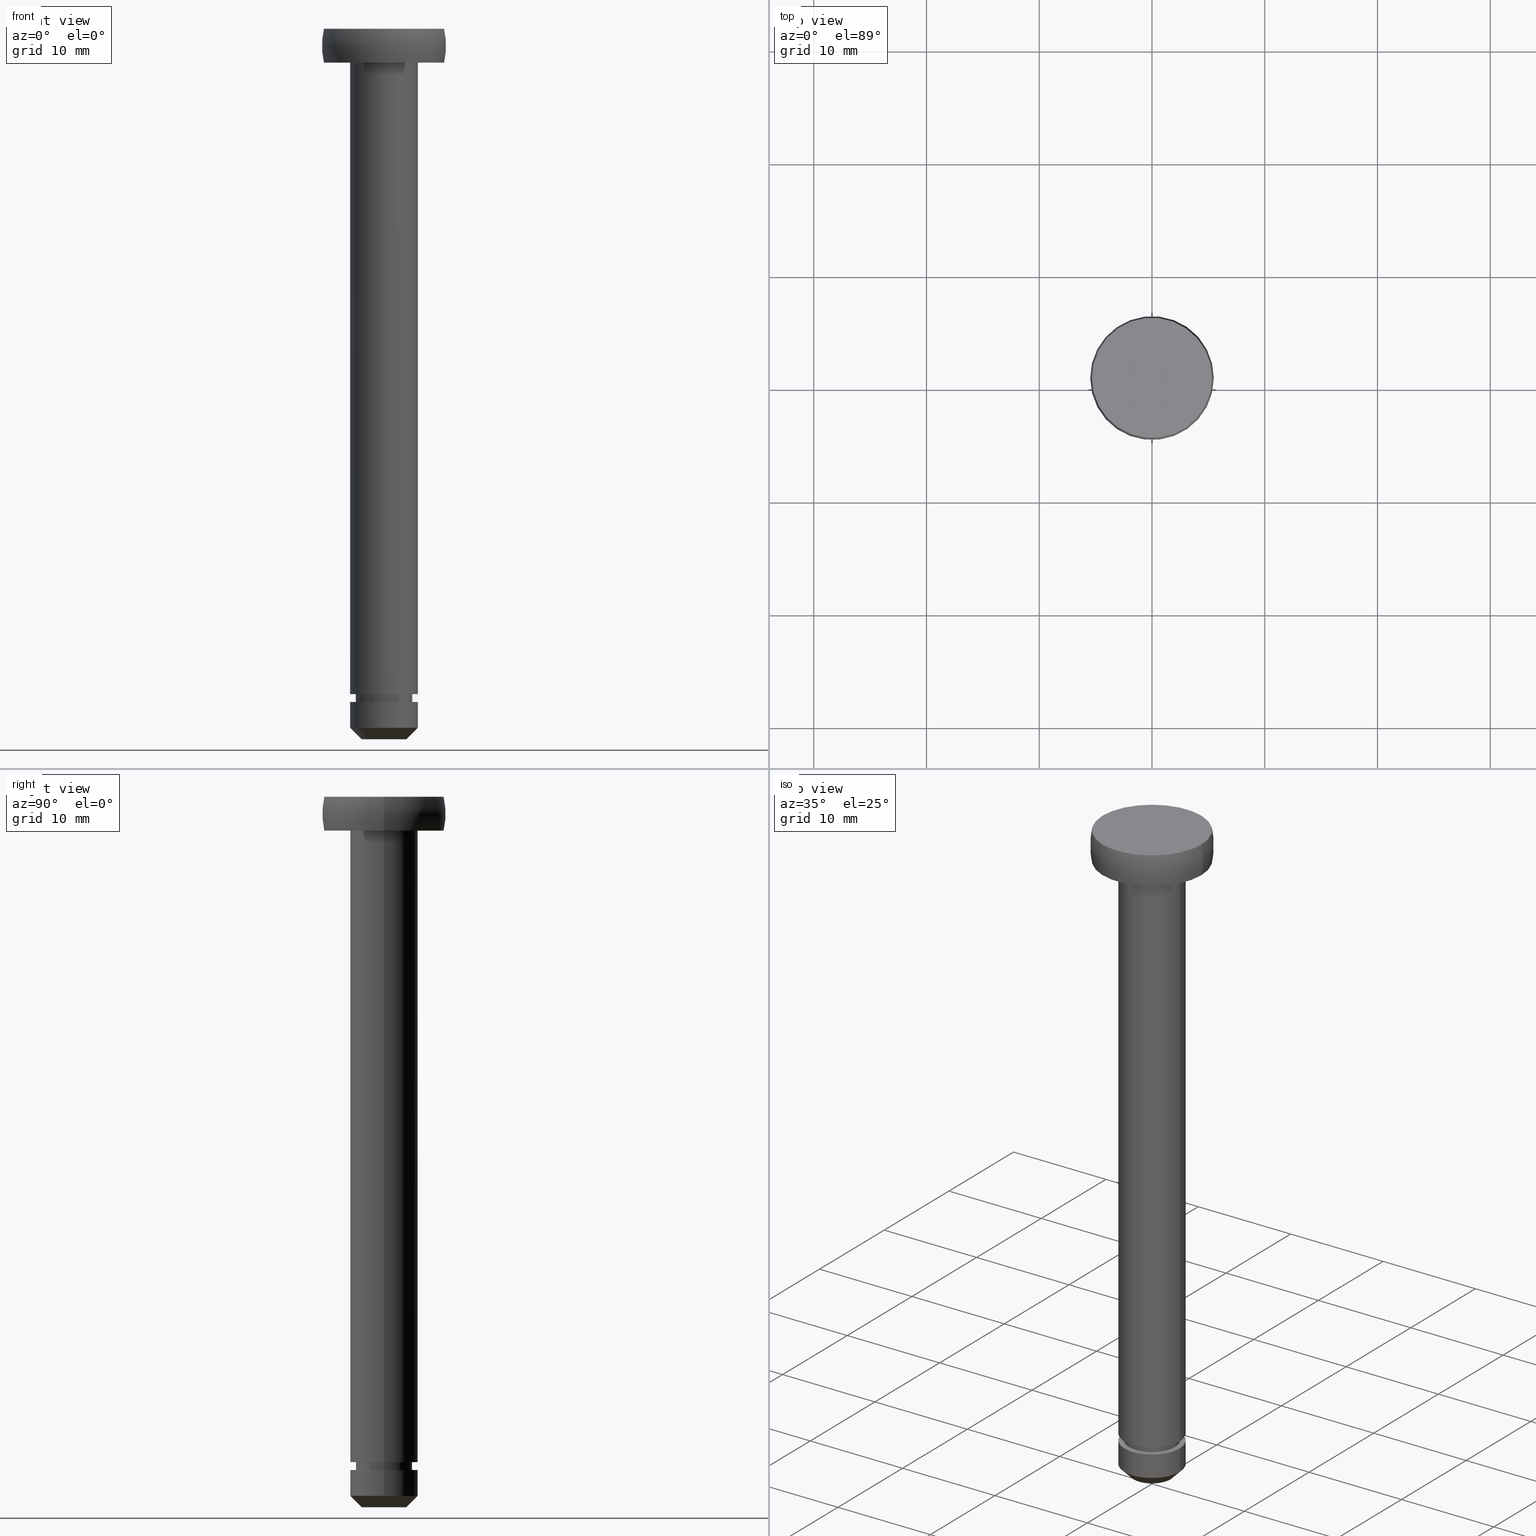
[diagram: canonical four-view strip — front | top / right | iso, engineering-drawing reading convention]
A machine part, canonical four-view strip (front | top / right | iso — engineering-drawing reading convention). The complete STEP part file that produces these views, byte-faithful:
ISO-10303-21;
HEADER;
FILE_DESCRIPTION (( 'STEP AP214' ),
    '1' );
FILE_NAME ('TH_121SUS_6_60.STEP',
    '2016-08-24T05:26:56',
    ( '' ),
    ( '' ),
    'SwSTEP 2.0',
    'SolidWorks 2015',
    '' );
FILE_SCHEMA (( 'AUTOMOTIVE_DESIGN' ));
ENDSEC;

DATA;
#1 = EDGE_LOOP ( 'NONE', ( #223, #256 ) ) ;
#2 = PRODUCT_CONTEXT ( 'NONE', #21, 'mechanical' ) ;
#3 = AXIS2_PLACEMENT_3D ( 'NONE', #32, #13, #445 ) ;
#4 = DIRECTION ( 'NONE',  ( -1.000000000000000000, 0.0000000000000000000, -0.0000000000000000000 ) ) ;
#5 = ORIENTED_EDGE ( 'NONE', *, *, #400, .T. ) ;
#6 = CARTESIAN_POINT ( 'NONE',  ( -3.000000000000000000, 0.0000000000000000000, -6.132507950209293800E-014 ) ) ;
#7 = CYLINDRICAL_SURFACE ( 'NONE', #336, 2.999999999999998200 ) ;
#8 = APPLICATION_PROTOCOL_DEFINITION ( 'draft international standard', 'automotive_design', 1998, #21 ) ;
#9 = EDGE_LOOP ( 'NONE', ( #444, #314, #383, #92 ) ) ;
#10 = LINE ( 'NONE', #249, #425 ) ;
#11 = CARTESIAN_POINT ( 'NONE',  ( 0.0000000000000000000, 0.0000000000000000000, -6.132507696099412100E-014 ) ) ;
#12 = CONICAL_SURFACE ( 'NONE', #253, 2.000000000000000000, 0.7853981633974944600 ) ;
#13 = DIRECTION ( 'NONE',  ( 0.0000000000000000000, 0.0000000000000000000, -1.000000000000000000 ) ) ;
#14 = DIRECTION ( 'NONE',  ( 0.0000000000000000000, 0.0000000000000000000, -1.000000000000000000 ) ) ;
#15 = CARTESIAN_POINT ( 'NONE',  ( -2.500000000000000000, 0.0000000000000000000, -6.132507950209293800E-014 ) ) ;
#16 = SURFACE_STYLE_FILL_AREA ( #360 ) ;
#17 = DIRECTION ( 'NONE',  ( 0.0000000000000000000, 0.0000000000000000000, -1.000000000000000000 ) ) ;
#18 = MECHANICAL_DESIGN_GEOMETRIC_PRESENTATION_REPRESENTATION (  '', ( #436 ), #33 ) ;
#19 = FACE_OUTER_BOUND ( 'NONE', #199, .T. ) ;
#20 = DIRECTION ( 'NONE',  ( -1.000000000000000000, 0.0000000000000000000, 0.0000000000000000000 ) ) ;
#21 = APPLICATION_CONTEXT ( 'automotive_design' ) ;
#22 = ORIENTED_EDGE ( 'NONE', *, *, #240, .T. ) ;
#23 = MANIFOLD_SOLID_BREP ( '��]1', #119 ) ;
#24 = ORIENTED_EDGE ( 'NONE', *, *, #441, .F. ) ;
#25 = EDGE_CURVE ( 'NONE', #457, #91, #353, .T. ) ;
#26 = ORIENTED_EDGE ( 'NONE', *, *, #366, .F. ) ;
#27 = AXIS2_PLACEMENT_3D ( 'NONE', #404, #374, #117 ) ;
#28 = ORIENTED_EDGE ( 'NONE', *, *, #419, .T. ) ;
#29 = APPLICATION_CONTEXT ( 'automotive_design' ) ;
#30 = PRODUCT ( 'TH_121SUS_6_60', 'TH_121SUS_6_60', '', ( #132 ) ) ;
#31 = ADVANCED_FACE ( 'NONE', ( #459 ), #149, .T. ) ;
#32 = CARTESIAN_POINT ( 'NONE',  ( 0.0000000000000000000, 0.0000000000000000000, -3.000000018043550200 ) ) ;
#33 =( GEOMETRIC_REPRESENTATION_CONTEXT ( 3 ) GLOBAL_UNCERTAINTY_ASSIGNED_CONTEXT ( ( #413 ) ) GLOBAL_UNIT_ASSIGNED_CONTEXT ( ( #405, #152, #169 ) ) REPRESENTATION_CONTEXT ( 'NONE', 'WORKASPACE' ) );
#34 = DIRECTION ( 'NONE',  ( 0.0000000000000000000, 0.0000000000000000000, -1.000000000000000000 ) ) ;
#35 = DIRECTION ( 'NONE',  ( 0.0000000000000000000, 0.0000000000000000000, -1.000000000000000000 ) ) ;
#36 = FACE_OUTER_BOUND ( 'NONE', #390, .T. ) ;
#37 = DIRECTION ( 'NONE',  ( -1.000000000000000000, 0.0000000000000000000, 0.0000000000000000000 ) ) ;
#38 = ORIENTED_EDGE ( 'NONE', *, *, #387, .F. ) ;
#39 = ORIENTED_EDGE ( 'NONE', *, *, #122, .F. ) ;
#40 = DIRECTION ( 'NONE',  ( -1.000000000000000000, 0.0000000000000000000, 0.0000000000000000000 ) ) ;
#41 = DIRECTION ( 'NONE',  ( 0.0000000000000000000, 0.0000000000000000000, 1.000000000000000000 ) ) ;
#42 = ORIENTED_EDGE ( 'NONE', *, *, #287, .T. ) ;
#43 = ORIENTED_EDGE ( 'NONE', *, *, #190, .F. ) ;
#44 = DIRECTION ( 'NONE',  ( -1.000000000000000000, 0.0000000000000000000, 0.0000000000000000000 ) ) ;
#45 = DIRECTION ( 'NONE',  ( -1.000000000000000000, 0.0000000000000000000, 0.0000000000000000000 ) ) ;
#46 = AXIS2_PLACEMENT_3D ( 'NONE', #407, #330, #345 ) ;
#47 = DIRECTION ( 'NONE',  ( -1.000000000000000000, 0.0000000000000000000, 0.0000000000000000000 ) ) ;
#48 = ORIENTED_EDGE ( 'NONE', *, *, #462, .T. ) ;
#49 = DIRECTION ( 'NONE',  ( -1.000000000000000000, 0.0000000000000000000, 0.0000000000000000000 ) ) ;
#50 = ORIENTED_EDGE ( 'NONE', *, *, #441, .T. ) ;
#51 = CARTESIAN_POINT ( 'NONE',  ( 0.0000000000000000000, 0.0000000000000000000, -59.00000001804349400 ) ) ;
#52 = LINE ( 'NONE', #381, #382 ) ;
#53 = DIRECTION ( 'NONE',  ( 0.0000000000000000000, 0.0000000000000000000, -1.000000000000000000 ) ) ;
#54 = EDGE_CURVE ( 'NONE', #158, #367, #110, .T. ) ;
#55 = FACE_OUTER_BOUND ( 'NONE', #225, .T. ) ;
#56 = ORIENTED_EDGE ( 'NONE', *, *, #387, .T. ) ;
#57 = SHAPE_REPRESENTATION ( 'TH_121SUS_6_60', ( #175, #128 ), #156 ) ;
#58 = VECTOR ( 'NONE', #102, 1000.000000000000000 ) ;
#59 = AXIS2_PLACEMENT_3D ( 'NONE', #11, #409, #290 ) ;
#60 = ORIENTED_EDGE ( 'NONE', *, *, #185, .F. ) ;
#61 = CIRCLE ( 'NONE', #46, 2.500000000000000000 ) ;
#62 = SHAPE_REPRESENTATION ( 'shaft', ( #114 ), #94 ) ;
#63 = CONTEXT_DEPENDENT_SHAPE_REPRESENTATION ( #218, #280 ) ;
#64 = AXIS2_PLACEMENT_3D ( 'NONE', #250, #296, #244 ) ;
#65 = VERTEX_POINT ( 'NONE', #373 ) ;
#66 = CARTESIAN_POINT ( 'NONE',  ( 0.0000000000000000000, 0.0000000000000000000, -59.70000001804350400 ) ) ;
#67 = APPLICATION_PROTOCOL_DEFINITION ( 'draft international standard', 'automotive_design', 1998, #29 ) ;
#68 = UNCERTAINTY_MEASURE_WITH_UNIT (LENGTH_MEASURE( 1.000000000000000100E-005 ), #74, 'distance_accuracy_value', 'NONE');
#69 = DIRECTION ( 'NONE',  ( -1.000000000000000000, -1.224646799147353200E-016, 0.0000000000000000000 ) ) ;
#70 = FACE_OUTER_BOUND ( 'NONE', #71, .T. ) ;
#71 = EDGE_LOOP ( 'NONE', ( #442, #293, #48, #356 ) ) ;
#72 = CARTESIAN_POINT ( 'NONE',  ( -2.500000000000000000, 0.0000000000000000000, -59.00000001804349400 ) ) ;
#73 = COLOUR_RGB ( '',0.7921568627450980000, 0.8196078431372548800, 0.9333333333333333500 ) ;
#74 =( LENGTH_UNIT ( ) NAMED_UNIT ( * ) SI_UNIT ( .MILLI., .METRE. ) );
#75 = VECTOR ( 'NONE', #229, 1000.000000000000000 ) ;
#76 = CIRCLE ( 'NONE', #355, 3.000000000000000000 ) ;
#77 = AXIS2_PLACEMENT_3D ( 'NONE', #410, #270, #238 ) ;
#78 = SHAPE_DEFINITION_REPRESENTATION ( #317, #57 ) ;
#79 = CARTESIAN_POINT ( 'NONE',  ( -1.142766791230102100, -1.399485693051835900E-016, -1.500000009021820000 ) ) ;
#80 = ORIENTED_EDGE ( 'NONE', *, *, #25, .F. ) ;
#81 = CIRCLE ( 'NONE', #426, 6.642766791230087600 ) ;
#82 = DIRECTION ( 'NONE',  ( -1.000000000000000000, 0.0000000000000000000, 0.0000000000000000000 ) ) ;
#83 = ORIENTED_EDGE ( 'NONE', *, *, #54, .T. ) ;
#84 = EDGE_CURVE ( 'NONE', #401, #171, #203, .T. ) ;
#85 = CYLINDRICAL_SURFACE ( 'NONE', #27, 3.000000000000000000 ) ;
#86 = CARTESIAN_POINT ( 'NONE',  ( -2.500000000000000000, 0.0000000000000000000, -59.70000001804350400 ) ) ;
#87 = VERTEX_POINT ( 'NONE', #326 ) ;
#88 = PLANE ( 'NONE',  #226 ) ;
#89 = AXIS2_PLACEMENT_3D ( 'NONE', #228, #189, #20 ) ;
#90 = CARTESIAN_POINT ( 'NONE',  ( 0.0000000000000000000, 0.0000000000000000000, -1.500000009021820000 ) ) ;
#91 = VERTEX_POINT ( 'NONE', #437 ) ;
#92 = ORIENTED_EDGE ( 'NONE', *, *, #211, .F. ) ;
#93 = EDGE_CURVE ( 'NONE', #145, #457, #184, .T. ) ;
#94 =( GEOMETRIC_REPRESENTATION_CONTEXT ( 3 ) GLOBAL_UNCERTAINTY_ASSIGNED_CONTEXT ( ( #68 ) ) GLOBAL_UNIT_ASSIGNED_CONTEXT ( ( #74, #170, #176 ) ) REPRESENTATION_CONTEXT ( 'NONE', 'WORKASPACE' ) );
#95 = EDGE_CURVE ( 'NONE', #196, #166, #126, .T. ) ;
#96 = EDGE_LOOP ( 'NONE', ( #83, #5 ) ) ;
#97 = ORIENTED_EDGE ( 'NONE', *, *, #304, .T. ) ;
#98 = AXIS2_PLACEMENT_3D ( 'NONE', #252, #168, #370 ) ;
#99 = ORIENTED_EDGE ( 'NONE', *, *, #217, .T. ) ;
#100 = DIRECTION ( 'NONE',  ( 1.000000000000000000, 0.0000000000000000000, 0.0000000000000000000 ) ) ;
#101 = ORIENTED_EDGE ( 'NONE', *, *, #462, .F. ) ;
#102 = DIRECTION ( 'NONE',  ( 0.0000000000000000000, 0.0000000000000000000, -1.000000000000000000 ) ) ;
#103 = CIRCLE ( 'NONE', #323, 2.500000000000000000 ) ;
#104 = DIRECTION ( 'NONE',  ( -1.000000000000000000, 0.0000000000000000000, 0.0000000000000000000 ) ) ;
#105 = AXIS2_PLACEMENT_3D ( 'NONE', #286, #143, #45 ) ;
#106 = DIRECTION ( 'NONE',  ( 1.000000000000000000, 0.0000000000000000000, 0.0000000000000000000 ) ) ;
#107 = ORIENTED_EDGE ( 'NONE', *, *, #190, .T. ) ;
#108 = DIRECTION ( 'NONE',  ( 0.7071067811865802100, 0.0000000000000000000, 0.7071067811865149300 ) ) ;
#109 = CARTESIAN_POINT ( 'NONE',  ( 0.0000000000000000000, 0.0000000000000000000, 0.0000000000000000000 ) ) ;
#110 = CIRCLE ( 'NONE', #89, 2.000000000000000000 ) ;
#111 = CARTESIAN_POINT ( 'NONE',  ( 0.0000000000000000000, 0.0000000000000000000, -63.00000001804340100 ) ) ;
#112 = EDGE_LOOP ( 'NONE', ( #306, #206 ) ) ;
#113 = DIRECTION ( 'NONE',  ( 0.0000000000000000000, 0.0000000000000000000, -1.000000000000000000 ) ) ;
#114 = AXIS2_PLACEMENT_3D ( 'NONE', #144, #338, #100 ) ;
#115 = CARTESIAN_POINT ( 'NONE',  ( 1.142766791230102100, 0.0000000000000000000, -1.500000009021820000 ) ) ;
#116 = CIRCLE ( 'NONE', #202, 3.000000000000000000 ) ;
#117 = DIRECTION ( 'NONE',  ( -1.000000000000000000, 0.0000000000000000000, 0.0000000000000000000 ) ) ;
#118 = AXIS2_PLACEMENT_3D ( 'NONE', #231, #136, #47 ) ;
#119 = CLOSED_SHELL ( 'NONE', ( #344, #234, #135, #272, #283, #121, #186, #397, #153, #31, #276, #127, #325, #261, #456 ) ) ;
#120 = EDGE_CURVE ( 'NONE', #162, #208, #320, .T. ) ;
#121 = ADVANCED_FACE ( 'NONE', ( #36 ), #376, .T. ) ;
#122 = EDGE_CURVE ( 'NONE', #65, #91, #116, .T. ) ;
#123 = CIRCLE ( 'NONE', #369, 2.000000000000000000 ) ;
#124 = EDGE_LOOP ( 'NONE', ( #56, #432 ) ) ;
#125 = AXIS2_PLACEMENT_3D ( 'NONE', #375, #268, #341 ) ;
#126 = CIRCLE ( 'NONE', #151, 2.500000000000000000 ) ;
#127 = ADVANCED_FACE ( 'NONE', ( #70 ), #468, .T. ) ;
#128 = AXIS2_PLACEMENT_3D ( 'NONE', #147, #41, #429 ) ;
#129 = STYLED_ITEM ( 'NONE', ( #458 ), #182 ) ;
#130 = CARTESIAN_POINT ( 'NONE',  ( 0.0000000000000000000, 0.0000000000000000000, -62.00000001804349400 ) ) ;
#131 = CIRCLE ( 'NONE', #77, 5.328427118366800400 ) ;
#132 = PRODUCT_CONTEXT ( 'NONE', #163, 'mechanical' ) ;
#133 = CARTESIAN_POINT ( 'NONE',  ( 0.0000000000000000000, 0.0000000000000000000, -6.132507950209293800E-014 ) ) ;
#134 = PLANE ( 'NONE',  #393 ) ;
#135 = ADVANCED_FACE ( 'NONE', ( #236 ), #7, .T. ) ;
#136 = DIRECTION ( 'NONE',  ( 0.0000000000000000000, 0.0000000000000000000, -1.000000000000000000 ) ) ;
#137 = AXIS2_PLACEMENT_3D ( 'NONE', #307, #467, #439 ) ;
#138 = SURFACE_STYLE_USAGE ( .BOTH. , #403 ) ;
#139 = DIRECTION ( 'NONE',  ( 1.000000000000000000, 0.0000000000000000000, 0.0000000000000000000 ) ) ;
#140 = CARTESIAN_POINT ( 'NONE',  ( -5.328427118366799500, 0.0000000000000000000, -6.132507696099412100E-014 ) ) ;
#141 = CARTESIAN_POINT ( 'NONE',  ( 0.0000000000000000000, 0.0000000000000000000, -59.70000001804350400 ) ) ;
#142 = PLANE ( 'NONE',  #98 ) ;
#143 = DIRECTION ( 'NONE',  ( 0.0000000000000000000, 0.0000000000000000000, -1.000000000000000000 ) ) ;
#144 = CARTESIAN_POINT ( 'NONE',  ( 0.0000000000000000000, 0.0000000000000000000, 0.0000000000000000000 ) ) ;
#145 = VERTEX_POINT ( 'NONE', #402 ) ;
#146 = ORIENTED_EDGE ( 'NONE', *, *, #347, .T. ) ;
#147 = CARTESIAN_POINT ( 'NONE',  ( 0.0000000000000000000, 0.0000000000000000000, 0.0000000000000000000 ) ) ;
#148 =( NAMED_UNIT ( * ) PLANE_ANGLE_UNIT ( ) SI_UNIT ( $, .RADIAN. ) );
#149 = CYLINDRICAL_SURFACE ( 'NONE', #105, 2.999999999999998200 ) ;
#150 = DIRECTION ( 'NONE',  ( 0.0000000000000000000, -0.0000000000000000000, 1.000000000000000000 ) ) ;
#151 = AXIS2_PLACEMENT_3D ( 'NONE', #431, #267, #284 ) ;
#152 =( NAMED_UNIT ( * ) PLANE_ANGLE_UNIT ( ) SI_UNIT ( $, .RADIAN. ) );
#153 = ADVANCED_FACE ( 'NONE', ( #427 ), #12, .T. ) ;
#154 = VECTOR ( 'NONE', #165, 1000.000000000000000 ) ;
#155 = ORIENTED_EDGE ( 'NONE', *, *, #359, .F. ) ;
#156 =( GEOMETRIC_REPRESENTATION_CONTEXT ( 3 ) GLOBAL_UNCERTAINTY_ASSIGNED_CONTEXT ( ( #213 ) ) GLOBAL_UNIT_ASSIGNED_CONTEXT ( ( #265, #433, #342 ) ) REPRESENTATION_CONTEXT ( 'NONE', 'WORKASPACE' ) );
#157 = CARTESIAN_POINT ( 'NONE',  ( 0.0000000000000000000, 0.0000000000000000000, -63.00000001804340100 ) ) ;
#158 = VERTEX_POINT ( 'NONE', #371 ) ;
#159 = SURFACE_STYLE_FILL_AREA ( #412 ) ;
#160 = ORIENTED_EDGE ( 'NONE', *, *, #211, .T. ) ;
#161 = PRESENTATION_LAYER_ASSIGNMENT (  '', '', ( #129 ) ) ;
#162 = VERTEX_POINT ( 'NONE', #450 ) ;
#163 = APPLICATION_CONTEXT ( 'automotive_design' ) ;
#164 = ORIENTED_EDGE ( 'NONE', *, *, #25, .T. ) ;
#165 = DIRECTION ( 'NONE',  ( 0.0000000000000000000, 0.0000000000000000000, -1.000000000000000000 ) ) ;
#166 = VERTEX_POINT ( 'NONE', #72 ) ;
#167 = DIRECTION ( 'NONE',  ( 0.0000000000000000000, 0.0000000000000000000, -1.000000000000000000 ) ) ;
#168 = DIRECTION ( 'NONE',  ( 0.0000000000000000000, -0.0000000000000000000, 1.000000000000000000 ) ) ;
#169 =( NAMED_UNIT ( * ) SI_UNIT ( $, .STERADIAN. ) SOLID_ANGLE_UNIT ( ) );
#170 =( NAMED_UNIT ( * ) PLANE_ANGLE_UNIT ( ) SI_UNIT ( $, .RADIAN. ) );
#171 = VERTEX_POINT ( 'NONE', #288 ) ;
#172 = VERTEX_POINT ( 'NONE', #329 ) ;
#173 = AXIS2_PLACEMENT_3D ( 'NONE', #130, #399, #466 ) ;
#174 = DIRECTION ( 'NONE',  ( 1.000000000000000000, 0.0000000000000000000, 0.0000000000000000000 ) ) ;
#175 = AXIS2_PLACEMENT_3D ( 'NONE', #446, #430, #106 ) ;
#176 =( NAMED_UNIT ( * ) SI_UNIT ( $, .STERADIAN. ) SOLID_ANGLE_UNIT ( ) );
#177 = CIRCLE ( 'NONE', #242, 5.328427118366799500 ) ;
#178 = LINE ( 'NONE', #334, #392 ) ;
#179 = CARTESIAN_POINT ( 'NONE',  ( 2.500000000000000000, 3.061616997868383100E-016, -6.132507950209293800E-014 ) ) ;
#180 = MECHANICAL_DESIGN_GEOMETRIC_PRESENTATION_REPRESENTATION (  '', ( #129 ), #209 ) ;
#181 = DIRECTION ( 'NONE',  ( 0.0000000000000000000, 0.0000000000000000000, -1.000000000000000000 ) ) ;
#182 = ADVANCED_BREP_SHAPE_REPRESENTATION ( '', ( #23, #114 ), #94 ) ;
#183 = DIRECTION ( 'NONE',  ( -1.000000000000000000, 0.0000000000000000000, 0.0000000000000000000 ) ) ;
#184 = CIRCLE ( 'NONE', #125, 3.000000000000000000 ) ;
#185 = EDGE_CURVE ( 'NONE', #367, #162, #52, .T. ) ;
#186 = ADVANCED_FACE ( 'NONE', ( #386 ), #260, .T. ) ;
#187 = ORIENTED_EDGE ( 'NONE', *, *, #120, .F. ) ;
#188 = CARTESIAN_POINT ( 'NONE',  ( 2.500000000000000000, 0.0000000000000000000, -59.00000001804349400 ) ) ;
#189 = DIRECTION ( 'NONE',  ( 0.0000000000000000000, 0.0000000000000000000, -1.000000000000000000 ) ) ;
#190 = EDGE_CURVE ( 'NONE', #273, #208, #178, .T. ) ;
#191 = CARTESIAN_POINT ( 'NONE',  ( -3.000000000000000000, 0.0000000000000000000, -59.70000001804350400 ) ) ;
#192 = ORIENTED_EDGE ( 'NONE', *, *, #463, .T. ) ;
#193 = AXIS2_PLACEMENT_3D ( 'NONE', #408, #53, #315 ) ;
#194 = CIRCLE ( 'NONE', #297, 6.642766791230086700 ) ;
#195 = ORIENTED_EDGE ( 'NONE', *, *, #84, .F. ) ;
#196 = VERTEX_POINT ( 'NONE', #421 ) ;
#197 = PRODUCT_DEFINITION_SHAPE ( 'NONE', 'NONE',  #204 ) ;
#198 = PRODUCT_DEFINITION_CONTEXT ( 'detailed design', #396, 'design' ) ;
#199 = EDGE_LOOP ( 'NONE', ( #42, #224 ) ) ;
#200 = CIRCLE ( 'NONE', #464, 3.000000000000000000 ) ;
#201 = EDGE_LOOP ( 'NONE', ( #28, #107, #187, #24 ) ) ;
#202 = AXIS2_PLACEMENT_3D ( 'NONE', #51, #113, #104 ) ;
#203 = CIRCLE ( 'NONE', #59, 5.328427118366799500 ) ;
#204 = PRODUCT_DEFINITION ( 'UNKNOWN', '', #339, #198 ) ;
#205 = LINE ( 'NONE', #255, #75 ) ;
#206 = ORIENTED_EDGE ( 'NONE', *, *, #240, .F. ) ;
#207 = FACE_OUTER_BOUND ( 'NONE', #96, .T. ) ;
#208 = VERTEX_POINT ( 'NONE', #349 ) ;
#209 =( GEOMETRIC_REPRESENTATION_CONTEXT ( 3 ) GLOBAL_UNCERTAINTY_ASSIGNED_CONTEXT ( ( #328 ) ) GLOBAL_UNIT_ASSIGNED_CONTEXT ( ( #324, #148, #247 ) ) REPRESENTATION_CONTEXT ( 'NONE', 'WORKASPACE' ) );
#210 = CIRCLE ( 'NONE', #137, 2.999999999999996000 ) ;
#211 = EDGE_CURVE ( 'NONE', #158, #208, #10, .T. ) ;
#212 = CARTESIAN_POINT ( 'NONE',  ( 0.0000000000000000000, 0.0000000000000000000, -59.70000001804350400 ) ) ;
#213 = UNCERTAINTY_MEASURE_WITH_UNIT (LENGTH_MEASURE( 1.000000000000000100E-005 ), #265, 'distance_accuracy_value', 'NONE');
#214 = DIRECTION ( 'NONE',  ( -1.000000000000000000, 0.0000000000000000000, 0.0000000000000000000 ) ) ;
#215 = DIRECTION ( 'NONE',  ( 0.0000000000000000000, 0.0000000000000000000, -1.000000000000000000 ) ) ;
#216 = VERTEX_POINT ( 'NONE', #191 ) ;
#217 = EDGE_CURVE ( 'NONE', #91, #65, #76, .T. ) ;
#218 =( REPRESENTATION_RELATIONSHIP ('NONE','NONE', #57, #62 ) REPRESENTATION_RELATIONSHIP_WITH_TRANSFORMATION ( #357 )SHAPE_REPRESENTATION_RELATIONSHIP( ) );
#219 = SHAPE_REPRESENTATION_RELATIONSHIP ( 'NONE' , 'NONE' ,  #62, #182 ) ;
#220 = ORIENTED_EDGE ( 'NONE', *, *, #217, .F. ) ;
#221 = CARTESIAN_POINT ( 'NONE',  ( 2.500000000000000000, 3.061616997868383100E-016, -59.70000001804350400 ) ) ;
#222 = DIRECTION ( 'NONE',  ( 1.000000000000000000, 0.0000000000000000000, 0.0000000000000000000 ) ) ;
#223 = ORIENTED_EDGE ( 'NONE', *, *, #463, .F. ) ;
#224 = ORIENTED_EDGE ( 'NONE', *, *, #264, .T. ) ;
#225 = EDGE_LOOP ( 'NONE', ( #398, #302, #424, #26 ) ) ;
#226 = AXIS2_PLACEMENT_3D ( 'NONE', #188, #448, #4 ) ;
#227 = APPLICATION_PROTOCOL_DEFINITION ( 'draft international standard', 'automotive_design', 1998, #163 ) ;
#228 = CARTESIAN_POINT ( 'NONE',  ( 0.0000000000000000000, 0.0000000000000000000, -63.00000001804340100 ) ) ;
#229 = DIRECTION ( 'NONE',  ( 0.0000000000000000000, 0.0000000000000000000, -1.000000000000000000 ) ) ;
#230 = CARTESIAN_POINT ( 'NONE',  ( -3.000000000000000000, 0.0000000000000000000, -3.000000018043495100 ) ) ;
#231 = CARTESIAN_POINT ( 'NONE',  ( 0.0000000000000000000, 0.0000000000000000000, -1.500000009021820000 ) ) ;
#232 = DIRECTION ( 'NONE',  ( 0.0000000000000000000, 0.0000000000000000000, -1.000000000000000000 ) ) ;
#233 = DIRECTION ( 'NONE',  ( 0.0000000000000000000, 0.0000000000000000000, 1.000000000000000000 ) ) ;
#234 = ADVANCED_FACE ( 'NONE', ( #391 ), #300, .T. ) ;
#235 = CARTESIAN_POINT ( 'NONE',  ( 0.0000000000000000000, 0.0000000000000000000, -59.00000001804349400 ) ) ;
#236 = FACE_OUTER_BOUND ( 'NONE', #201, .T. ) ;
#237 = AXIS2_PLACEMENT_3D ( 'NONE', #90, #167, #214 ) ;
#238 = DIRECTION ( 'NONE',  ( -1.000000000000000000, 0.0000000000000000000, 0.0000000000000000000 ) ) ;
#239 = EDGE_CURVE ( 'NONE', #145, #65, #312, .T. ) ;
#240 = EDGE_CURVE ( 'NONE', #273, #216, #275, .T. ) ;
#241 = VECTOR ( 'NONE', #215, 1000.000000000000000 ) ;
#242 = AXIS2_PLACEMENT_3D ( 'NONE', #447, #332, #40 ) ;
#243 = ORIENTED_EDGE ( 'NONE', *, *, #359, .T. ) ;
#244 = DIRECTION ( 'NONE',  ( -1.000000000000000000, 0.0000000000000000000, -0.0000000000000000000 ) ) ;
#245 = ORIENTED_EDGE ( 'NONE', *, *, #122, .T. ) ;
#246 = DIRECTION ( 'NONE',  ( -0.0000000000000000000, -0.0000000000000000000, 1.000000000000000000 ) ) ;
#247 =( NAMED_UNIT ( * ) SI_UNIT ( $, .STERADIAN. ) SOLID_ANGLE_UNIT ( ) );
#248 = ORIENTED_EDGE ( 'NONE', *, *, #93, .F. ) ;
#249 = CARTESIAN_POINT ( 'NONE',  ( 2.000000000000000000, 0.0000000000000000000, -63.00000001804340100 ) ) ;
#250 = CARTESIAN_POINT ( 'NONE',  ( 3.000000000000000000, 0.0000000000000000000, -3.000000018043522700 ) ) ;
#251 = PRODUCT_DEFINITION_CONTEXT ( 'detailed design', #29, 'design' ) ;
#252 = CARTESIAN_POINT ( 'NONE',  ( 3.000000000000000000, 0.0000000000000000000, -59.70000001804350400 ) ) ;
#253 = AXIS2_PLACEMENT_3D ( 'NONE', #455, #246, #372 ) ;
#254 = VECTOR ( 'NONE', #364, 1000.000000000000000 ) ;
#255 = CARTESIAN_POINT ( 'NONE',  ( -2.999999999999998200, 0.0000000000000000000, -6.132507950209293800E-014 ) ) ;
#256 = ORIENTED_EDGE ( 'NONE', *, *, #95, .F. ) ;
#257 = PRODUCT_DEFINITION ( 'UNKNOWN', '', #277, #251 ) ;
#258 = TOROIDAL_SURFACE ( 'NONE', #118, -1.142766791230102100, 6.642766791230087600 ) ;
#259 = CARTESIAN_POINT ( 'NONE',  ( 0.0000000000000000000, 0.0000000000000000000, -63.00000001804340100 ) ) ;
#260 = PLANE ( 'NONE',  #380 ) ;
#261 = ADVANCED_FACE ( 'NONE', ( #322 ), #85, .T. ) ;
#262 = CIRCLE ( 'NONE', #3, 5.328427118366800400 ) ;
#263 = DIRECTION ( 'NONE',  ( 0.0000000000000000000, 0.0000000000000000000, -1.000000000000000000 ) ) ;
#264 = EDGE_CURVE ( 'NONE', #87, #172, #262, .T. ) ;
#265 =( LENGTH_UNIT ( ) NAMED_UNIT ( * ) SI_UNIT ( .MILLI., .METRE. ) );
#266 = DIRECTION ( 'NONE',  ( -1.000000000000000000, 0.0000000000000000000, 0.0000000000000000000 ) ) ;
#267 = DIRECTION ( 'NONE',  ( 0.0000000000000000000, 0.0000000000000000000, -1.000000000000000000 ) ) ;
#268 = DIRECTION ( 'NONE',  ( 0.0000000000000000000, 0.0000000000000000000, -1.000000000000000000 ) ) ;
#269 = CONICAL_SURFACE ( 'NONE', #406, 2.000000000000000000, 0.7853981633974944600 ) ;
#270 = DIRECTION ( 'NONE',  ( 0.0000000000000000000, 0.0000000000000000000, -1.000000000000000000 ) ) ;
#271 = AXIS2_PLACEMENT_3D ( 'NONE', #350, #17, #378 ) ;
#272 = ADVANCED_FACE ( 'NONE', ( #379 ), #269, .T. ) ;
#273 = VERTEX_POINT ( 'NONE', #415 ) ;
#274 = ORIENTED_EDGE ( 'NONE', *, *, #264, .F. ) ;
#275 = CIRCLE ( 'NONE', #428, 3.000000000000000000 ) ;
#276 = ADVANCED_FACE ( 'NONE', ( #389, #308 ), #142, .T. ) ;
#277 = PRODUCT_DEFINITION_FORMATION_WITH_SPECIFIED_SOURCE ( 'ANY', '', #30, .NOT_KNOWN. ) ;
#278 = PRODUCT ( 'shaft', 'shaft', '', ( #2 ) ) ;
#279 = PLANE ( 'NONE',  #64 ) ;
#280 = PRODUCT_DEFINITION_SHAPE ( 'NONE', 'NONE',  #469 ) ;
#281 = AXIS2_PLACEMENT_3D ( 'NONE', #109, #233, #174 ) ;
#282 = DIRECTION ( 'NONE',  ( -1.000000000000000000, 0.0000000000000000000, -0.0000000000000000000 ) ) ;
#283 = ADVANCED_FACE ( 'NONE', ( #55 ), #258, .T. ) ;
#284 = DIRECTION ( 'NONE',  ( -1.000000000000000000, 0.0000000000000000000, 0.0000000000000000000 ) ) ;
#285 = CARTESIAN_POINT ( 'NONE',  ( -2.000000000000000000, 3.061616997868380700E-016, -63.00000001804340100 ) ) ;
#286 = CARTESIAN_POINT ( 'NONE',  ( 0.0000000000000000000, 0.0000000000000000000, -6.132507950209293800E-014 ) ) ;
#287 = EDGE_CURVE ( 'NONE', #172, #87, #131, .T. ) ;
#288 = CARTESIAN_POINT ( 'NONE',  ( 5.328427118366799500, 6.525441214997859000E-016, -6.132507696099412100E-014 ) ) ;
#289 = PRESENTATION_STYLE_ASSIGNMENT (( #435 ) ) ;
#290 = DIRECTION ( 'NONE',  ( -1.000000000000000000, 0.0000000000000000000, 0.0000000000000000000 ) ) ;
#291 = DIRECTION ( 'NONE',  ( 0.0000000000000000000, 0.0000000000000000000, -1.000000000000000000 ) ) ;
#292 = EDGE_LOOP ( 'NONE', ( #243, #395, #220, #80 ) ) ;
#293 = ORIENTED_EDGE ( 'NONE', *, *, #95, .T. ) ;
#294 = DIRECTION ( 'NONE',  ( 0.0000000000000000000, 0.0000000000000000000, -1.000000000000000000 ) ) ;
#295 = EDGE_LOOP ( 'NONE', ( #195, #363 ) ) ;
#296 = DIRECTION ( 'NONE',  ( 0.0000000000000000000, 0.0000000000000000000, -1.000000000000000000 ) ) ;
#297 = AXIS2_PLACEMENT_3D ( 'NONE', #115, #385, #294 ) ;
#298 = DIRECTION ( 'NONE',  ( -1.224646799147353200E-016, 1.000000000000000000, 0.0000000000000000000 ) ) ;
#299 = VERTEX_POINT ( 'NONE', #86 ) ;
#300 = CYLINDRICAL_SURFACE ( 'NONE', #452, 2.500000000000000000 ) ;
#301 = COLOUR_RGB ( '',0.7921568627450980000, 0.8196078431372548800, 0.9333333333333333500 ) ;
#302 = ORIENTED_EDGE ( 'NONE', *, *, #411, .T. ) ;
#303 = ORIENTED_EDGE ( 'NONE', *, *, #304, .F. ) ;
#304 = EDGE_CURVE ( 'NONE', #208, #162, #210, .T. ) ;
#305 = EDGE_LOOP ( 'NONE', ( #43, #22, #50, #303 ) ) ;
#306 = ORIENTED_EDGE ( 'NONE', *, *, #419, .F. ) ;
#307 = CARTESIAN_POINT ( 'NONE',  ( 0.0000000000000000000, 0.0000000000000000000, -62.00000001804349400 ) ) ;
#308 = FACE_OUTER_BOUND ( 'NONE', #112, .T. ) ;
#309 = DIRECTION ( 'NONE',  ( 0.0000000000000000000, 0.0000000000000000000, -1.000000000000000000 ) ) ;
#310 = AXIS2_PLACEMENT_3D ( 'NONE', #340, #35, #49 ) ;
#311 = CARTESIAN_POINT ( 'NONE',  ( 3.000000000000000000, 3.673940397442059900E-016, -6.132507950209293800E-014 ) ) ;
#312 = LINE ( 'NONE', #311, #254 ) ;
#313 = PRODUCT_RELATED_PRODUCT_CATEGORY ( 'part', '', ( #30 ) ) ;
#314 = ORIENTED_EDGE ( 'NONE', *, *, #185, .T. ) ;
#315 = DIRECTION ( 'NONE',  ( -1.000000000000000000, 0.0000000000000000000, 0.0000000000000000000 ) ) ;
#316 = FACE_BOUND ( 'NONE', #337, .T. ) ;
#317 = PRODUCT_DEFINITION_SHAPE ( 'NONE', 'NONE',  #257 ) ;
#318 = EDGE_CURVE ( 'NONE', #196, #388, #331, .T. ) ;
#319 = ORIENTED_EDGE ( 'NONE', *, *, #318, .T. ) ;
#320 = CIRCLE ( 'NONE', #173, 2.999999999999996000 ) ;
#321 = EDGE_LOOP ( 'NONE', ( #60, #354, #160, #97 ) ) ;
#322 = FACE_OUTER_BOUND ( 'NONE', #449, .T. ) ;
#323 = AXIS2_PLACEMENT_3D ( 'NONE', #66, #343, #333 ) ;
#324 =( LENGTH_UNIT ( ) NAMED_UNIT ( * ) SI_UNIT ( .MILLI., .METRE. ) );
#325 = ADVANCED_FACE ( 'NONE', ( #422, #420 ), #88, .T. ) ;
#326 = CARTESIAN_POINT ( 'NONE',  ( 5.328427118366800400, 6.525441214997859000E-016, -3.000000018043550200 ) ) ;
#327 = ORIENTED_EDGE ( 'NONE', *, *, #366, .T. ) ;
#328 = UNCERTAINTY_MEASURE_WITH_UNIT (LENGTH_MEASURE( 1.000000000000000100E-005 ), #324, 'distance_accuracy_value', 'NONE');
#329 = CARTESIAN_POINT ( 'NONE',  ( -5.328427118366800400, 0.0000000000000000000, -3.000000018043550200 ) ) ;
#330 = DIRECTION ( 'NONE',  ( 0.0000000000000000000, 0.0000000000000000000, -1.000000000000000000 ) ) ;
#331 = LINE ( 'NONE', #179, #241 ) ;
#332 = DIRECTION ( 'NONE',  ( 0.0000000000000000000, 0.0000000000000000000, -1.000000000000000000 ) ) ;
#333 = DIRECTION ( 'NONE',  ( -1.000000000000000000, 0.0000000000000000000, 0.0000000000000000000 ) ) ;
#334 = CARTESIAN_POINT ( 'NONE',  ( 2.999999999999998200, 3.673940397442057900E-016, -6.132507950209293800E-014 ) ) ;
#335 = EDGE_LOOP ( 'NONE', ( #192, #319, #38, #101 ) ) ;
#336 = AXIS2_PLACEMENT_3D ( 'NONE', #414, #232, #434 ) ;
#337 = EDGE_LOOP ( 'NONE', ( #155, #248 ) ) ;
#338 = DIRECTION ( 'NONE',  ( 0.0000000000000000000, 0.0000000000000000000, 1.000000000000000000 ) ) ;
#339 = PRODUCT_DEFINITION_FORMATION_WITH_SPECIFIED_SOURCE ( 'ANY', '', #278, .NOT_KNOWN. ) ;
#340 = CARTESIAN_POINT ( 'NONE',  ( 0.0000000000000000000, 0.0000000000000000000, -6.132507950209293800E-014 ) ) ;
#341 = DIRECTION ( 'NONE',  ( -1.000000000000000000, 0.0000000000000000000, 0.0000000000000000000 ) ) ;
#342 =( NAMED_UNIT ( * ) SI_UNIT ( $, .STERADIAN. ) SOLID_ANGLE_UNIT ( ) );
#343 = DIRECTION ( 'NONE',  ( 0.0000000000000000000, 0.0000000000000000000, -1.000000000000000000 ) ) ;
#344 = ADVANCED_FACE ( 'NONE', ( #365 ), #384, .T. ) ;
#345 = DIRECTION ( 'NONE',  ( -1.000000000000000000, 0.0000000000000000000, 0.0000000000000000000 ) ) ;
#346 = ORIENTED_EDGE ( 'NONE', *, *, #93, .T. ) ;
#347 = EDGE_CURVE ( 'NONE', #171, #401, #177, .T. ) ;
#348 = FILL_AREA_STYLE_COLOUR ( '', #73 ) ;
#349 = CARTESIAN_POINT ( 'NONE',  ( 2.999999999999996000, 0.0000000000000000000, -62.00000001804349400 ) ) ;
#350 = CARTESIAN_POINT ( 'NONE',  ( 0.0000000000000000000, 0.0000000000000000000, -6.132507950209293800E-014 ) ) ;
#351 = ORIENTED_EDGE ( 'NONE', *, *, #411, .F. ) ;
#352 = ORIENTED_EDGE ( 'NONE', *, *, #239, .F. ) ;
#353 = LINE ( 'NONE', #6, #58 ) ;
#354 = ORIENTED_EDGE ( 'NONE', *, *, #54, .F. ) ;
#355 = AXIS2_PLACEMENT_3D ( 'NONE', #235, #14, #44 ) ;
#356 = ORIENTED_EDGE ( 'NONE', *, *, #416, .F. ) ;
#357 = ITEM_DEFINED_TRANSFORMATION ( 'NONE', 'NONE', #128,  #114 ) ;
#358 = PRODUCT_RELATED_PRODUCT_CATEGORY ( 'part', '', ( #278 ) ) ;
#359 = EDGE_CURVE ( 'NONE', #457, #145, #453, .T. ) ;
#360 = FILL_AREA_STYLE ('',( #417 ) ) ;
#361 = DIRECTION ( 'NONE',  ( -1.000000000000000000, 0.0000000000000000000, 0.0000000000000000000 ) ) ;
#362 = EDGE_LOOP ( 'NONE', ( #99, #245 ) ) ;
#363 = ORIENTED_EDGE ( 'NONE', *, *, #347, .F. ) ;
#364 = DIRECTION ( 'NONE',  ( 0.0000000000000000000, 0.0000000000000000000, -1.000000000000000000 ) ) ;
#365 = FACE_OUTER_BOUND ( 'NONE', #292, .T. ) ;
#366 = EDGE_CURVE ( 'NONE', #401, #172, #194, .T. ) ;
#367 = VERTEX_POINT ( 'NONE', #285 ) ;
#368 = DIRECTION ( 'NONE',  ( 0.0000000000000000000, 0.0000000000000000000, -1.000000000000000000 ) ) ;
#369 = AXIS2_PLACEMENT_3D ( 'NONE', #111, #291, #361 ) ;
#370 = DIRECTION ( 'NONE',  ( 1.000000000000000000, 0.0000000000000000000, 0.0000000000000000000 ) ) ;
#371 = CARTESIAN_POINT ( 'NONE',  ( 2.000000000000000000, 0.0000000000000000000, -63.00000001804340100 ) ) ;
#372 = DIRECTION ( 'NONE',  ( 1.000000000000000000, 0.0000000000000000000, 0.0000000000000000000 ) ) ;
#373 = CARTESIAN_POINT ( 'NONE',  ( 3.000000000000000000, 3.673940397442059900E-016, -59.00000001804349400 ) ) ;
#374 = DIRECTION ( 'NONE',  ( 0.0000000000000000000, 0.0000000000000000000, -1.000000000000000000 ) ) ;
#375 = CARTESIAN_POINT ( 'NONE',  ( 0.0000000000000000000, 0.0000000000000000000, -3.000000018043495100 ) ) ;
#376 = TOROIDAL_SURFACE ( 'NONE', #237, -1.142766791230102100, 6.642766791230087600 ) ;
#377 = DIRECTION ( 'NONE',  ( -0.7071067811865802100, 8.659560562355333500E-017, 0.7071067811865149300 ) ) ;
#378 = DIRECTION ( 'NONE',  ( -1.000000000000000000, 0.0000000000000000000, 0.0000000000000000000 ) ) ;
#379 = FACE_OUTER_BOUND ( 'NONE', #9, .T. ) ;
#380 = AXIS2_PLACEMENT_3D ( 'NONE', #418, #150, #139 ) ;
#381 = CARTESIAN_POINT ( 'NONE',  ( -2.000000000000000000, 2.449293598294706400E-016, -63.00000001804340100 ) ) ;
#382 = VECTOR ( 'NONE', #377, 1000.000000000000000 ) ;
#383 = ORIENTED_EDGE ( 'NONE', *, *, #120, .T. ) ;
#384 = CYLINDRICAL_SURFACE ( 'NONE', #271, 3.000000000000000000 ) ;
#385 = DIRECTION ( 'NONE',  ( -0.0000000000000000000, -1.000000000000000000, -0.0000000000000000000 ) ) ;
#386 = FACE_OUTER_BOUND ( 'NONE', #295, .T. ) ;
#387 = EDGE_CURVE ( 'NONE', #299, #388, #103, .T. ) ;
#388 = VERTEX_POINT ( 'NONE', #221 ) ;
#389 = FACE_BOUND ( 'NONE', #124, .T. ) ;
#390 = EDGE_LOOP ( 'NONE', ( #351, #146, #327, #274 ) ) ;
#391 = FACE_OUTER_BOUND ( 'NONE', #335, .T. ) ;
#392 = VECTOR ( 'NONE', #368, 1000.000000000000000 ) ;
#393 = AXIS2_PLACEMENT_3D ( 'NONE', #259, #440, #282 ) ;
#394 = SURFACE_SIDE_STYLE ('',( #16 ) ) ;
#395 = ORIENTED_EDGE ( 'NONE', *, *, #239, .T. ) ;
#396 = APPLICATION_CONTEXT ( 'automotive_design' ) ;
#397 = ADVANCED_FACE ( 'NONE', ( #207 ), #134, .T. ) ;
#398 = ORIENTED_EDGE ( 'NONE', *, *, #84, .T. ) ;
#399 = DIRECTION ( 'NONE',  ( 0.0000000000000000000, 0.0000000000000000000, -1.000000000000000000 ) ) ;
#400 = EDGE_CURVE ( 'NONE', #367, #158, #123, .T. ) ;
#401 = VERTEX_POINT ( 'NONE', #140 ) ;
#402 = CARTESIAN_POINT ( 'NONE',  ( 3.000000000000000000, 3.673940397442059900E-016, -3.000000018043495100 ) ) ;
#403 = SURFACE_SIDE_STYLE ('',( #159 ) ) ;
#404 = CARTESIAN_POINT ( 'NONE',  ( 0.0000000000000000000, 0.0000000000000000000, -6.132507950209293800E-014 ) ) ;
#405 =( LENGTH_UNIT ( ) NAMED_UNIT ( * ) SI_UNIT ( .MILLI., .METRE. ) );
#406 = AXIS2_PLACEMENT_3D ( 'NONE', #157, #451, #222 ) ;
#407 = CARTESIAN_POINT ( 'NONE',  ( 0.0000000000000000000, 0.0000000000000000000, -59.00000001804349400 ) ) ;
#408 = CARTESIAN_POINT ( 'NONE',  ( 0.0000000000000000000, 0.0000000000000000000, -3.000000018043495100 ) ) ;
#409 = DIRECTION ( 'NONE',  ( 0.0000000000000000000, 0.0000000000000000000, -1.000000000000000000 ) ) ;
#410 = CARTESIAN_POINT ( 'NONE',  ( 0.0000000000000000000, 0.0000000000000000000, -3.000000018043550200 ) ) ;
#411 = EDGE_CURVE ( 'NONE', #171, #87, #81, .T. ) ;
#412 = FILL_AREA_STYLE ('',( #348 ) ) ;
#413 = UNCERTAINTY_MEASURE_WITH_UNIT (LENGTH_MEASURE( 1.000000000000000100E-005 ), #405, 'distance_accuracy_value', 'NONE');
#414 = CARTESIAN_POINT ( 'NONE',  ( 0.0000000000000000000, 0.0000000000000000000, -6.132507950209293800E-014 ) ) ;
#415 = CARTESIAN_POINT ( 'NONE',  ( 3.000000000000000400, 3.673940397442060400E-016, -59.70000001804350400 ) ) ;
#416 = EDGE_CURVE ( 'NONE', #388, #299, #423, .T. ) ;
#417 = FILL_AREA_STYLE_COLOUR ( '', #301 ) ;
#418 = CARTESIAN_POINT ( 'NONE',  ( 5.328427118366799500, 0.0000000000000000000, -6.132507823154353000E-014 ) ) ;
#419 = EDGE_CURVE ( 'NONE', #216, #273, #200, .T. ) ;
#420 = FACE_BOUND ( 'NONE', #1, .T. ) ;
#421 = CARTESIAN_POINT ( 'NONE',  ( 2.500000000000000000, 3.061616997868383100E-016, -59.00000001804349400 ) ) ;
#422 = FACE_OUTER_BOUND ( 'NONE', #362, .T. ) ;
#423 = CIRCLE ( 'NONE', #443, 2.500000000000000000 ) ;
#424 = ORIENTED_EDGE ( 'NONE', *, *, #287, .F. ) ;
#425 = VECTOR ( 'NONE', #108, 1000.000000000000000 ) ;
#426 = AXIS2_PLACEMENT_3D ( 'NONE', #79, #298, #69 ) ;
#427 = FACE_OUTER_BOUND ( 'NONE', #321, .T. ) ;
#428 = AXIS2_PLACEMENT_3D ( 'NONE', #141, #263, #266 ) ;
#429 = DIRECTION ( 'NONE',  ( 1.000000000000000000, 0.0000000000000000000, 0.0000000000000000000 ) ) ;
#430 = DIRECTION ( 'NONE',  ( 0.0000000000000000000, 0.0000000000000000000, 1.000000000000000000 ) ) ;
#431 = CARTESIAN_POINT ( 'NONE',  ( 0.0000000000000000000, 0.0000000000000000000, -59.00000001804349400 ) ) ;
#432 = ORIENTED_EDGE ( 'NONE', *, *, #416, .T. ) ;
#433 =( NAMED_UNIT ( * ) PLANE_ANGLE_UNIT ( ) SI_UNIT ( $, .RADIAN. ) );
#434 = DIRECTION ( 'NONE',  ( -1.000000000000000000, 0.0000000000000000000, 0.0000000000000000000 ) ) ;
#435 = SURFACE_STYLE_USAGE ( .BOTH. , #394 ) ;
#436 = STYLED_ITEM ( 'NONE', ( #289 ), #23 ) ;
#437 = CARTESIAN_POINT ( 'NONE',  ( -3.000000000000000000, 0.0000000000000000000, -59.00000001804349400 ) ) ;
#438 = APPLICATION_PROTOCOL_DEFINITION ( 'draft international standard', 'automotive_design', 1998, #396 ) ;
#439 = DIRECTION ( 'NONE',  ( -1.000000000000000000, 0.0000000000000000000, 0.0000000000000000000 ) ) ;
#440 = DIRECTION ( 'NONE',  ( 0.0000000000000000000, 0.0000000000000000000, -1.000000000000000000 ) ) ;
#441 = EDGE_CURVE ( 'NONE', #216, #162, #205, .T. ) ;
#442 = ORIENTED_EDGE ( 'NONE', *, *, #318, .F. ) ;
#443 = AXIS2_PLACEMENT_3D ( 'NONE', #212, #181, #183 ) ;
#444 = ORIENTED_EDGE ( 'NONE', *, *, #400, .F. ) ;
#445 = DIRECTION ( 'NONE',  ( -1.000000000000000000, 0.0000000000000000000, 0.0000000000000000000 ) ) ;
#446 = CARTESIAN_POINT ( 'NONE',  ( 0.0000000000000000000, 0.0000000000000000000, 0.0000000000000000000 ) ) ;
#447 = CARTESIAN_POINT ( 'NONE',  ( 0.0000000000000000000, 0.0000000000000000000, -6.132507696099412100E-014 ) ) ;
#448 = DIRECTION ( 'NONE',  ( 0.0000000000000000000, 0.0000000000000000000, -1.000000000000000000 ) ) ;
#449 = EDGE_LOOP ( 'NONE', ( #352, #346, #164, #39 ) ) ;
#450 = CARTESIAN_POINT ( 'NONE',  ( -2.999999999999996000, 3.673940397442054400E-016, -62.00000001804349400 ) ) ;
#451 = DIRECTION ( 'NONE',  ( -0.0000000000000000000, -0.0000000000000000000, 1.000000000000000000 ) ) ;
#452 = AXIS2_PLACEMENT_3D ( 'NONE', #133, #309, #82 ) ;
#453 = CIRCLE ( 'NONE', #193, 3.000000000000000000 ) ;
#454 = SHAPE_DEFINITION_REPRESENTATION ( #197, #62 ) ;
#455 = CARTESIAN_POINT ( 'NONE',  ( 0.0000000000000000000, 0.0000000000000000000, -63.00000001804340100 ) ) ;
#456 = ADVANCED_FACE ( 'NONE', ( #19, #316 ), #279, .T. ) ;
#457 = VERTEX_POINT ( 'NONE', #230 ) ;
#458 = PRESENTATION_STYLE_ASSIGNMENT (( #138 ) ) ;
#459 = FACE_OUTER_BOUND ( 'NONE', #305, .T. ) ;
#460 = PRESENTATION_LAYER_ASSIGNMENT (  '', '', ( #436 ) ) ;
#461 = LINE ( 'NONE', #15, #154 ) ;
#462 = EDGE_CURVE ( 'NONE', #166, #299, #461, .T. ) ;
#463 = EDGE_CURVE ( 'NONE', #166, #196, #61, .T. ) ;
#464 = AXIS2_PLACEMENT_3D ( 'NONE', #465, #34, #37 ) ;
#465 = CARTESIAN_POINT ( 'NONE',  ( 0.0000000000000000000, 0.0000000000000000000, -59.70000001804350400 ) ) ;
#466 = DIRECTION ( 'NONE',  ( -1.000000000000000000, 0.0000000000000000000, 0.0000000000000000000 ) ) ;
#467 = DIRECTION ( 'NONE',  ( 0.0000000000000000000, 0.0000000000000000000, -1.000000000000000000 ) ) ;
#468 = CYLINDRICAL_SURFACE ( 'NONE', #310, 2.500000000000000000 ) ;
#469 = NEXT_ASSEMBLY_USAGE_OCCURRENCE ( 'NAUO1', ' ', ' ', #257, #204, $ ) ;
ENDSEC;
END-ISO-10303-21;
